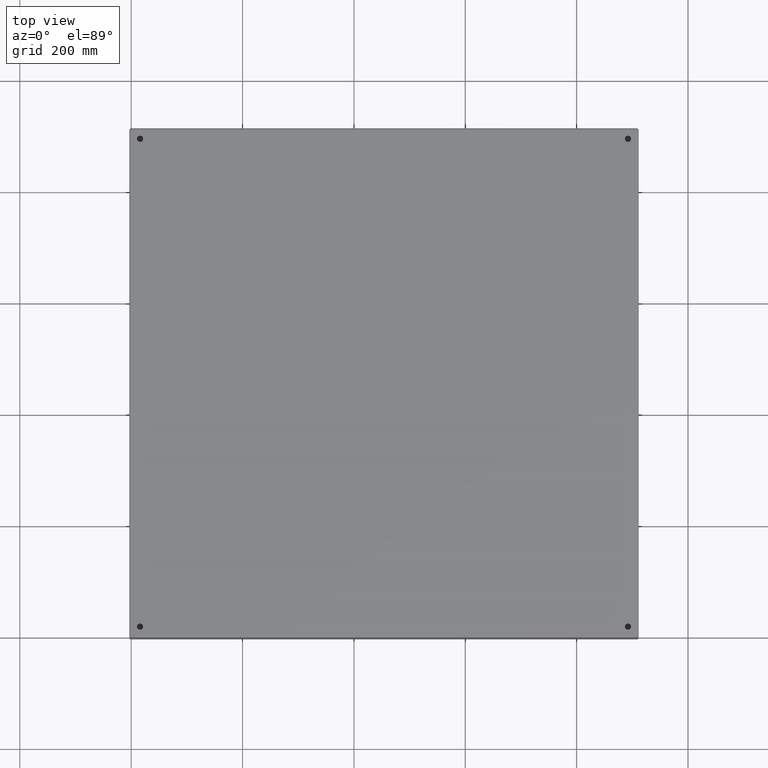
[diagram: clean part render]
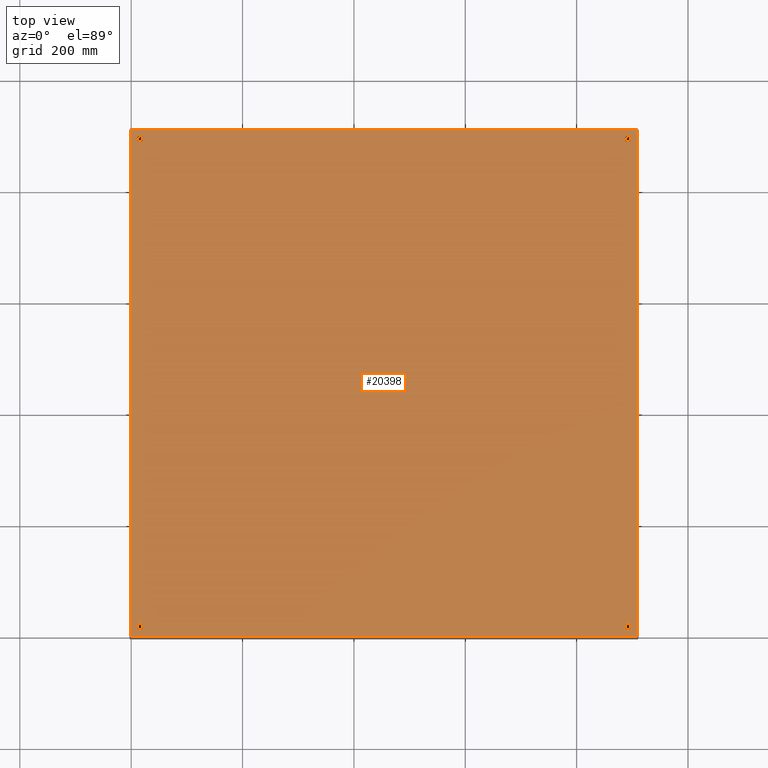
[diagram: same view with one face highlighted and labeled with its STEP entity id]
A machine part, top view. The second image highlights one B-rep face of the part: STEP entity #20398.
In plain terms, the highlighted planar face has unit normal (0, -0, -1).
Its self-contained STEP definition (entity closure, byte-faithful):
#15490=CARTESIAN_POINT('',(0.531249999999996,0.750000000000002,0.0));
#15491=VERTEX_POINT('',#15490);
#15492=CARTESIAN_POINT('',(0.749999999999996,0.750000000000002,0.0));
#15493=DIRECTION('',(0.0,0.0,1.0));
#15494=DIRECTION('',(1.0,0.0,0.0));
#15495=AXIS2_PLACEMENT_3D('',#15492,#15493,#15494);
#15496=CIRCLE('',#15495,0.218750000000000);
#15497=EDGE_CURVE('',#15491,#15491,#15496,.T.);
#15518=CARTESIAN_POINT('',(35.031249999999972,0.750000000000002,0.0));
#15519=VERTEX_POINT('',#15518);
#15520=CARTESIAN_POINT('',(35.249999999999972,0.750000000000002,0.0));
#15521=DIRECTION('',(0.0,0.0,1.0));
#15522=DIRECTION('',(1.0,0.0,0.0));
#15523=AXIS2_PLACEMENT_3D('',#15520,#15521,#15522);
#15524=CIRCLE('',#15523,0.218750000000000);
#15525=EDGE_CURVE('',#15519,#15519,#15524,.T.);
#15546=CARTESIAN_POINT('',(0.531249999999997,35.250000000000007,0.0));
#15547=VERTEX_POINT('',#15546);
#15548=CARTESIAN_POINT('',(0.749999999999997,35.250000000000007,0.0));
#15549=DIRECTION('',(0.0,0.0,1.0));
#15550=DIRECTION('',(1.0,0.0,0.0));
#15551=AXIS2_PLACEMENT_3D('',#15548,#15549,#15550);
#15552=CIRCLE('',#15551,0.218750000000000);
#15553=EDGE_CURVE('',#15547,#15547,#15552,.T.);
#15574=CARTESIAN_POINT('',(35.031249999999972,35.250000000000007,0.0));
#15575=VERTEX_POINT('',#15574);
#15576=CARTESIAN_POINT('',(35.249999999999972,35.250000000000007,0.0));
#15577=DIRECTION('',(0.0,0.0,1.0));
#15578=DIRECTION('',(1.0,0.0,0.0));
#15579=AXIS2_PLACEMENT_3D('',#15576,#15577,#15578);
#15580=CIRCLE('',#15579,0.218750000000000);
#15581=EDGE_CURVE('',#15575,#15575,#15580,.T.);
#19176=CARTESIAN_POINT('',(35.894750000000002,35.882766839324368,0.0));
#19177=VERTEX_POINT('',#19176);
#19274=CARTESIAN_POINT('',(35.894750000000002,0.117233160675640,0.0));
#19275=VERTEX_POINT('',#19274);
#19318=CARTESIAN_POINT('',(35.894750000000002,35.882766839324368,0.0));
#19319=DIRECTION('',(0.0,-1.0,0.0));
#19320=VECTOR('',#19319,35.765533678648723);
#19321=LINE('',#19318,#19320);
#19322=EDGE_CURVE('',#19177,#19275,#19321,.T.);
#19493=CARTESIAN_POINT('',(0.117233160675629,35.894750000000002,5.594825E-015));
#19494=VERTEX_POINT('',#19493);
#19591=CARTESIAN_POINT('',(35.882766839324368,35.894750000000002,0.0));
#19592=VERTEX_POINT('',#19591);
#19635=CARTESIAN_POINT('',(0.117233160675630,35.894750000000002,0.0));
#19636=DIRECTION('',(1.0,0.0,0.0));
#19637=VECTOR('',#19636,35.765533678648737);
#19638=LINE('',#19635,#19637);
#19639=EDGE_CURVE('',#19494,#19592,#19638,.T.);
#19806=CARTESIAN_POINT('',(0.105250000000007,0.117233160675642,0.0));
#19807=VERTEX_POINT('',#19806);
#19904=CARTESIAN_POINT('',(0.105249999999996,35.882766839324361,0.0));
#19905=VERTEX_POINT('',#19904);
#19948=CARTESIAN_POINT('',(0.105250000000007,0.117233160675640,0.0));
#19949=DIRECTION('',(0.0,1.0,0.0));
#19950=VECTOR('',#19949,35.765533678648723);
#19951=LINE('',#19948,#19950);
#19952=EDGE_CURVE('',#19807,#19905,#19951,.T.);
#20119=CARTESIAN_POINT('',(35.882766839324361,0.105250000000001,0.0));
#20120=VERTEX_POINT('',#20119);
#20175=CARTESIAN_POINT('',(0.117233160675647,0.105250000000001,0.0));
#20176=VERTEX_POINT('',#20175);
#20190=CARTESIAN_POINT('',(35.882766839324361,0.105250000000001,0.0));
#20191=DIRECTION('',(-1.0,0.0,0.0));
#20192=VECTOR('',#20191,35.765533678648715);
#20193=LINE('',#20190,#20192);
#20194=EDGE_CURVE('',#20120,#20176,#20193,.T.);
#20285=CARTESIAN_POINT('',(0.062108078884585,0.062108078884585,0.0));
#20286=DIRECTION('',(0.0,0.0,1.0));
#20287=DIRECTION('',(1.0,0.0,0.0));
#20288=AXIS2_PLACEMENT_3D('',#20285,#20286,#20287);
#20289=CIRCLE('',#20288,0.070000000000000);
#20290=EDGE_CURVE('',#20176,#19807,#20289,.T.);
#20347=CARTESIAN_POINT('',(35.937891921115423,0.062108078884581,0.0));
#20348=DIRECTION('',(0.0,0.0,1.0));
#20349=DIRECTION('',(1.0,0.0,0.0));
#20350=AXIS2_PLACEMENT_3D('',#20347,#20348,#20349);
#20351=CIRCLE('',#20350,0.070000000000000);
#20352=EDGE_CURVE('',#19275,#20120,#20351,.T.);
#20359=CARTESIAN_POINT('',(17.999999999999996,18.000000000000011,0.0));
#20360=DIRECTION('',(0.0,0.0,1.0));
#20361=DIRECTION('',(1.0,0.0,0.0));
#20362=AXIS2_PLACEMENT_3D('',#20359,#20360,#20361);
#20363=PLANE('',#20362);
#20364=ORIENTED_EDGE('',*,*,#20194,.T.);
#20365=ORIENTED_EDGE('',*,*,#20290,.T.);
#20366=ORIENTED_EDGE('',*,*,#19952,.T.);
#20367=CARTESIAN_POINT('',(0.062108078884570,35.937891921115423,0.0));
#20368=DIRECTION('',(0.0,0.0,1.0));
#20369=DIRECTION('',(1.0,0.0,0.0));
#20370=AXIS2_PLACEMENT_3D('',#20367,#20368,#20369);
#20371=CIRCLE('',#20370,0.070000000000000);
#20372=EDGE_CURVE('',#19905,#19494,#20371,.T.);
#20373=ORIENTED_EDGE('',*,*,#20372,.T.);
#20374=ORIENTED_EDGE('',*,*,#19639,.T.);
#20375=CARTESIAN_POINT('',(35.937891921115423,35.937891921115430,0.0));
#20376=DIRECTION('',(0.0,0.0,1.0));
#20377=DIRECTION('',(1.0,0.0,0.0));
#20378=AXIS2_PLACEMENT_3D('',#20375,#20376,#20377);
#20379=CIRCLE('',#20378,0.070000000000000);
#20380=EDGE_CURVE('',#19592,#19177,#20379,.T.);
#20381=ORIENTED_EDGE('',*,*,#20380,.T.);
#20382=ORIENTED_EDGE('',*,*,#19322,.T.);
#20383=ORIENTED_EDGE('',*,*,#20352,.T.);
#20384=EDGE_LOOP('',(#20364,#20365,#20366,#20373,#20374,#20381,#20382,#20383));
#20385=FACE_OUTER_BOUND('',#20384,.T.);
#20386=ORIENTED_EDGE('',*,*,#15497,.T.);
#20387=EDGE_LOOP('',(#20386));
#20388=FACE_BOUND('',#20387,.T.);
#20389=ORIENTED_EDGE('',*,*,#15525,.T.);
#20390=EDGE_LOOP('',(#20389));
#20391=FACE_BOUND('',#20390,.T.);
#20392=ORIENTED_EDGE('',*,*,#15553,.T.);
#20393=EDGE_LOOP('',(#20392));
#20394=FACE_BOUND('',#20393,.T.);
#20395=ORIENTED_EDGE('',*,*,#15581,.T.);
#20396=EDGE_LOOP('',(#20395));
#20397=FACE_BOUND('',#20396,.T.);
#20398=ADVANCED_FACE('',(#20385,#20388,#20391,#20394,#20397),#20363,.F.);